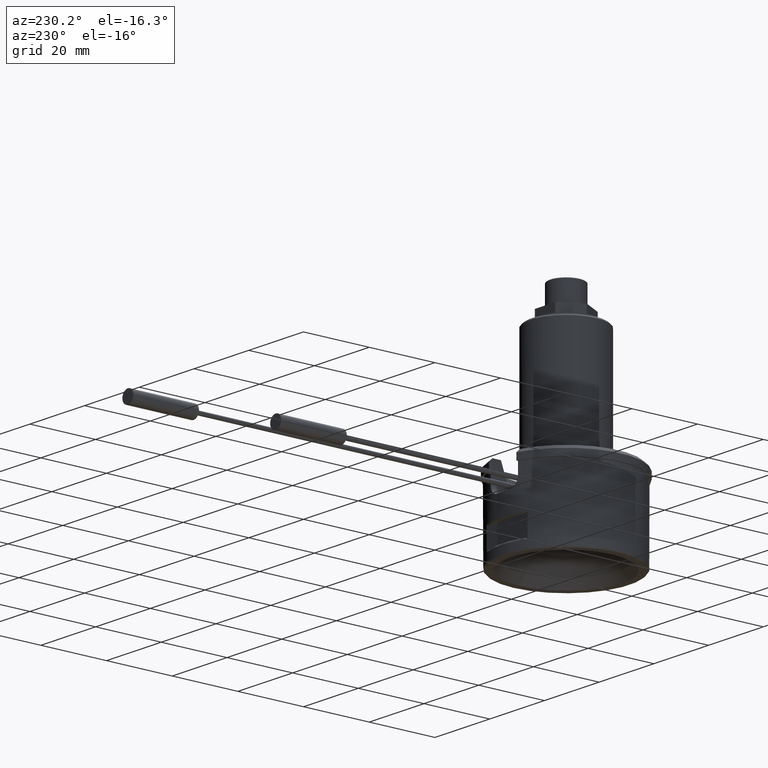
[diagram: clean part render]
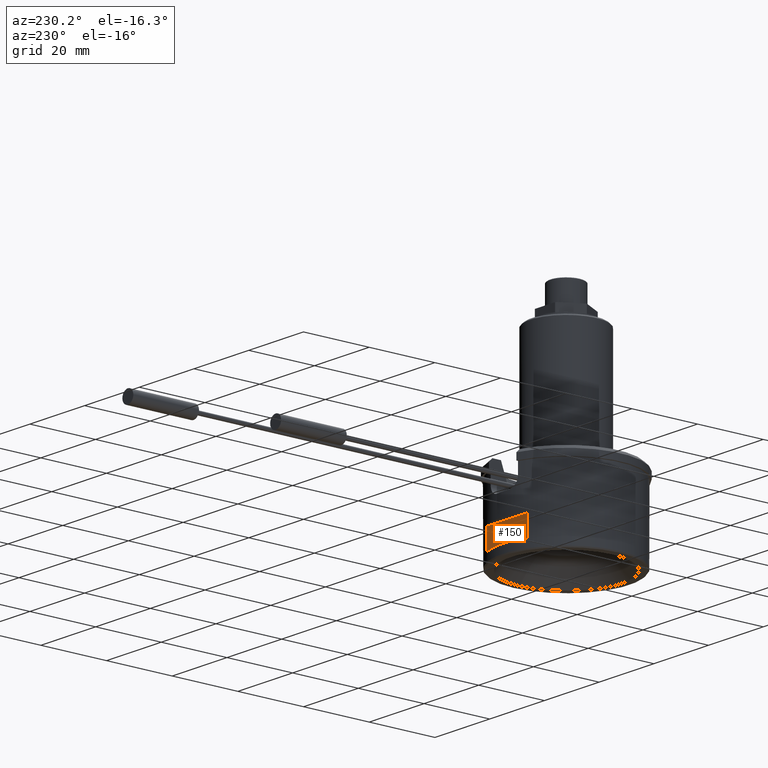
[diagram: same view with one face highlighted and labeled with its STEP entity id]
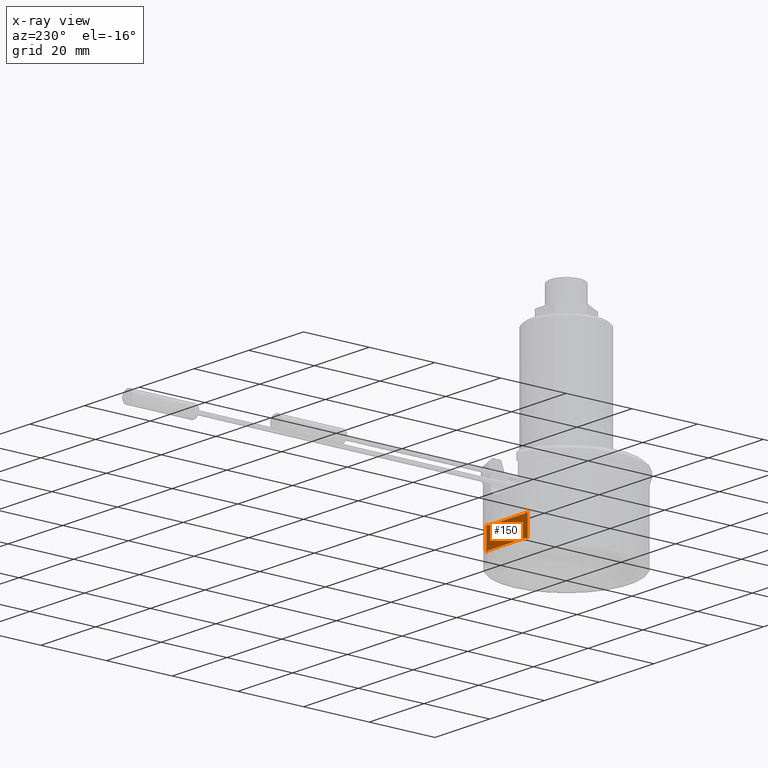
[diagram: x-ray of the same camera — body ghosted, the highlighted face saturated]
A machine part, auxiliary view. The second image highlights one B-rep face of the part: STEP entity #150.
The next image is the same camera in x-ray: the body ghosted, the highlighted face saturated — about 0% of this face is hidden behind the body in this view.
In plain terms, the highlighted planar face has unit normal (0, 1, 0).
Its self-contained STEP definition (entity closure, byte-faithful):
#58=B_SPLINE_CURVE_WITH_KNOTS('',3,(#1667,#1668,#1669,#1670),
 .UNSPECIFIED.,.F.,.F.,(4,4),(0.,1.),.UNSPECIFIED.);
#59=B_SPLINE_CURVE_WITH_KNOTS('',3,(#1671,#1672,#1673,#1674),
 .UNSPECIFIED.,.F.,.F.,(4,4),(0.,1.),.UNSPECIFIED.);
#60=B_SPLINE_CURVE_WITH_KNOTS('',3,(#1678,#1679,#1680,#1681),
 .UNSPECIFIED.,.F.,.F.,(4,4),(0.,1.),.UNSPECIFIED.);
#61=B_SPLINE_CURVE_WITH_KNOTS('',3,(#1682,#1683,#1684,#1685),
 .UNSPECIFIED.,.F.,.F.,(4,4),(0.,1.),.UNSPECIFIED.);
#100=FACE_OUTER_BOUND('',#404,.T.);
#150=ADVANCED_FACE('',(#100),#196,.T.);
#196=PLANE('',#1014);
#240=LINE('',#1654,#284);
#241=LINE('',#1659,#285);
#242=LINE('',#1664,#286);
#243=LINE('',#1676,#287);
#284=VECTOR('',#1210,1.);
#285=VECTOR('',#1215,1.);
#286=VECTOR('',#1220,1.);
#287=VECTOR('',#1221,1.);
#404=EDGE_LOOP('',(#548,#549,#550,#551,#552,#553,#554,#555));
#548=ORIENTED_EDGE('',*,*,#849,.T.);
#549=ORIENTED_EDGE('',*,*,#850,.T.);
#550=ORIENTED_EDGE('',*,*,#845,.F.);
#551=ORIENTED_EDGE('',*,*,#851,.T.);
#552=ORIENTED_EDGE('',*,*,#852,.T.);
#553=ORIENTED_EDGE('',*,*,#853,.T.);
#554=ORIENTED_EDGE('',*,*,#847,.F.);
#555=ORIENTED_EDGE('',*,*,#854,.T.);
#744=VERTEX_POINT('',#1655);
#745=VERTEX_POINT('',#1656);
#746=VERTEX_POINT('',#1660);
#747=VERTEX_POINT('',#1661);
#748=VERTEX_POINT('',#1665);
#749=VERTEX_POINT('',#1666);
#750=VERTEX_POINT('',#1675);
#751=VERTEX_POINT('',#1677);
#845=EDGE_CURVE('',#744,#745,#240,.T.);
#847=EDGE_CURVE('',#746,#747,#241,.T.);
#849=EDGE_CURVE('',#748,#749,#242,.T.);
#850=EDGE_CURVE('',#749,#745,#58,.T.);
#851=EDGE_CURVE('',#744,#750,#59,.T.);
#852=EDGE_CURVE('',#750,#751,#243,.T.);
#853=EDGE_CURVE('',#751,#747,#60,.T.);
#854=EDGE_CURVE('',#746,#748,#61,.T.);
#1014=AXIS2_PLACEMENT_3D('',#1686,#1222,#1223);
#1210=DIRECTION('',(-1.,0.,0.));
#1215=DIRECTION('',(1.,0.,0.));
#1220=DIRECTION('',(0.,0.,1.));
#1221=DIRECTION('',(0.,0.,-1.));
#1222=DIRECTION('',(0.,1.,0.));
#1223=DIRECTION('',(0.,0.,1.));
#1654=CARTESIAN_POINT('',(-8.07749999998543,18.,8.99999999998455));
#1655=CARTESIAN_POINT('',(6.68131723539604,18.,8.99999999998455));
#1656=CARTESIAN_POINT('',(-6.68131723539604,18.,8.99999999998455));
#1659=CARTESIAN_POINT('',(8.07749999998546,18.,2.99999999999999));
#1660=CARTESIAN_POINT('',(-6.68131723539604,18.,2.99999999999999));
#1661=CARTESIAN_POINT('',(6.68131723539604,18.,2.99999999999999));
#1664=CARTESIAN_POINT('',(-7.50000000000002,18.,0.));
#1665=CARTESIAN_POINT('',(-7.50000000000002,18.,2.69999999999999));
#1666=CARTESIAN_POINT('',(-7.50000000000002,18.,9.29999999998456));
#1667=CARTESIAN_POINT('',(-7.50000000000002,18.,9.29999999998456));
#1668=CARTESIAN_POINT('',(-7.2287329713317,18.,9.19566652741982));
#1669=CARTESIAN_POINT('',(-6.95581167871184,18.,9.09552002369009));
#1670=CARTESIAN_POINT('',(-6.68131723539604,18.,8.99999999998455));
#1671=CARTESIAN_POINT('',(6.68131723539604,18.,8.99999999998455));
#1672=CARTESIAN_POINT('',(6.95581167871184,18.,9.09552002369009));
#1673=CARTESIAN_POINT('',(7.2287329713317,18.,9.19566652741982));
#1674=CARTESIAN_POINT('',(7.50000000000002,18.,9.29999999998456));
#1675=CARTESIAN_POINT('',(7.50000000000002,18.,9.29999999998456));
#1676=CARTESIAN_POINT('',(7.50000000000002,18.,0.));
#1677=CARTESIAN_POINT('',(7.50000000000002,18.,2.69999999999999));
#1678=CARTESIAN_POINT('',(7.50000000000002,18.,2.69999999999999));
#1679=CARTESIAN_POINT('',(7.2287329713317,18.,2.80433347256473));
#1680=CARTESIAN_POINT('',(6.95581167871184,18.,2.90447997629446));
#1681=CARTESIAN_POINT('',(6.68131723539604,18.,2.99999999999999));
#1682=CARTESIAN_POINT('',(-6.68131723539604,18.,2.99999999999999));
#1683=CARTESIAN_POINT('',(-6.95581167871184,18.,2.90447997629446));
#1684=CARTESIAN_POINT('',(-7.2287329713317,18.,2.80433347256473));
#1685=CARTESIAN_POINT('',(-7.50000000000002,18.,2.69999999999999));
#1686=CARTESIAN_POINT('',(0.,18.,0.));